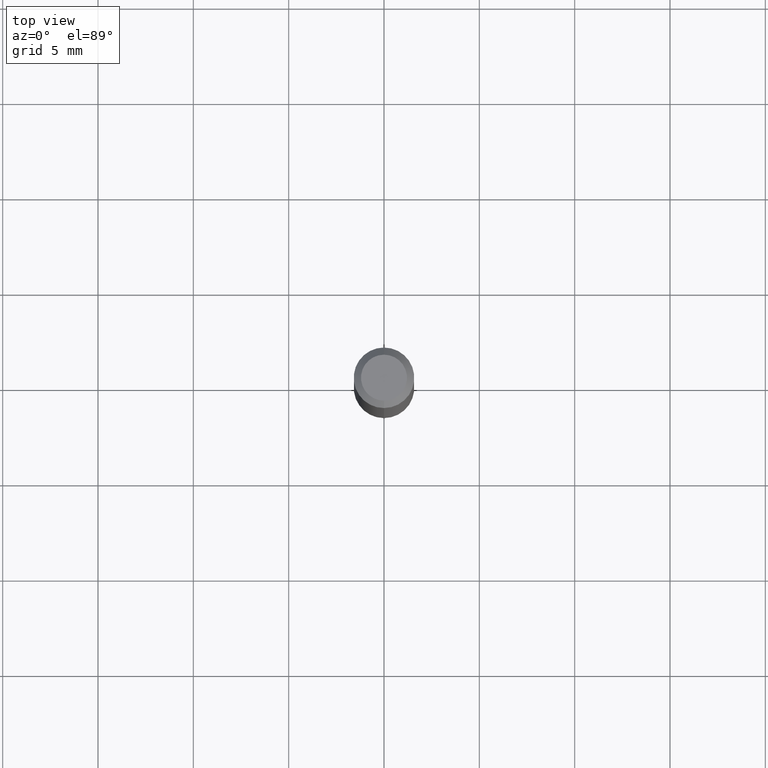
[diagram: clean part render]
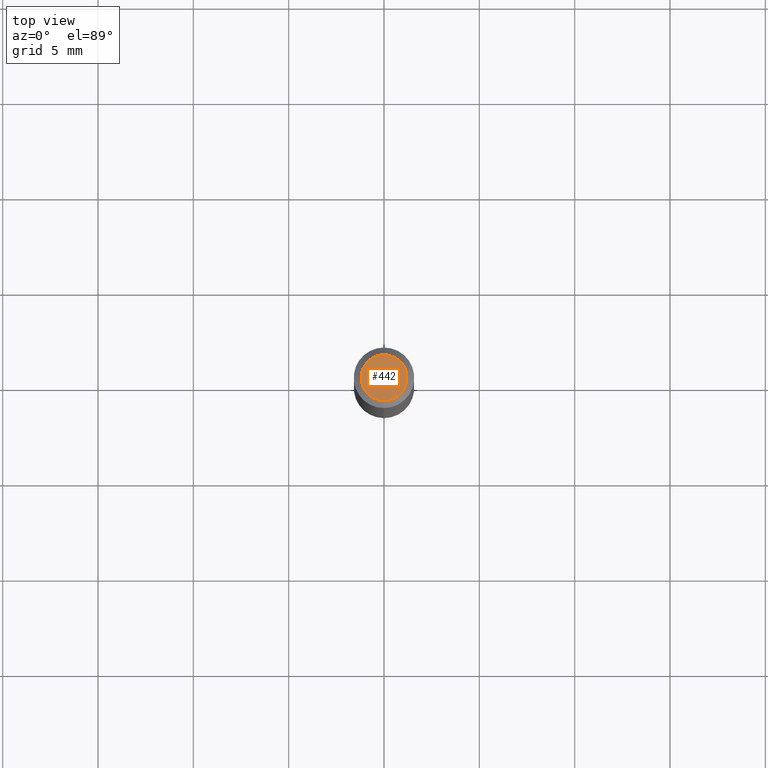
[diagram: same view with one face highlighted and labeled with its STEP entity id]
A machine part, top view. The second image highlights one B-rep face of the part: STEP entity #442.
In plain terms, the highlighted planar face has unit normal (0, -0, -1).
Its self-contained STEP definition (entity closure, byte-faithful):
#60 = CARTESIAN_POINT ( 'NONE',  ( 1.601770415187410324E-45, -2.286917678720774903E-31, -6.549972423396132599E-17 ) ) ;
#63 = DIRECTION ( 'NONE',  ( 2.445461311357550700E-29, -3.491492071862827071E-15, -1.000000000000000000 ) ) ;
#69 = CIRCLE ( 'NONE', #335, 0.04749999999999999362 ) ;
#86 = AXIS2_PLACEMENT_3D ( 'NONE', #60, #342, #106 ) ;
#95 = CARTESIAN_POINT ( 'NONE',  ( 1.601770415187410324E-45, -2.286917678720774903E-31, -6.549972423396132599E-17 ) ) ;
#97 = DIRECTION ( 'NONE',  ( -2.445461311357550980E-29, 3.491492071862827071E-15, 1.000000000000000000 ) ) ;
#106 = DIRECTION ( 'NONE',  ( -6.982962677686266711E-15, -1.000000000000000000, 3.491492071862827071E-15 ) ) ;
#150 = DIRECTION ( 'NONE',  ( 6.982962677686265922E-15, 1.000000000000000000, -3.491492071862827071E-15 ) ) ;
#171 = AXIS2_PLACEMENT_3D ( 'NONE', #425, #63, #150 ) ;
#210 = DIRECTION ( 'NONE',  ( -6.982962677686266711E-15, -1.000000000000000000, 3.491492071862827071E-15 ) ) ;
#237 = ORIENTED_EDGE ( 'NONE', *, *, #499, .T. ) ;
#251 = VERTEX_POINT ( 'NONE', #354 ) ;
#309 = PLANE ( 'NONE',  #171 ) ;
#323 = ORIENTED_EDGE ( 'NONE', *, *, #409, .T. ) ;
#335 = AXIS2_PLACEMENT_3D ( 'NONE', #95, #97, #210 ) ;
#337 = FACE_OUTER_BOUND ( 'NONE', #429, .T. ) ;
#340 = CARTESIAN_POINT ( 'NONE',  ( -3.773273898774340269E-16, -0.04749999999999999362, 1.003461491795229392E-16 ) ) ;
#342 = DIRECTION ( 'NONE',  ( -2.445461311357550980E-29, 3.491492071862827071E-15, 1.000000000000000000 ) ) ;
#354 = CARTESIAN_POINT ( 'NONE',  ( 3.840629472727447874E-16, 0.04749999999999999362, -2.313455976474456035E-16 ) ) ;
#409 = EDGE_CURVE ( 'NONE', #449, #251, #69, .T. ) ;
#414 = CIRCLE ( 'NONE', #86, 0.04749999999999999362 ) ;
#425 = CARTESIAN_POINT ( 'NONE',  ( 3.316907271900976096E-16, 0.04749999999999999362, -1.985957355304649466E-16 ) ) ;
#429 = EDGE_LOOP ( 'NONE', ( #237, #323 ) ) ;
#442 = ADVANCED_FACE ( 'NONE', ( #337 ), #309, .F. ) ;
#449 = VERTEX_POINT ( 'NONE', #340 ) ;
#499 = EDGE_CURVE ( 'NONE', #251, #449, #414, .T. ) ;